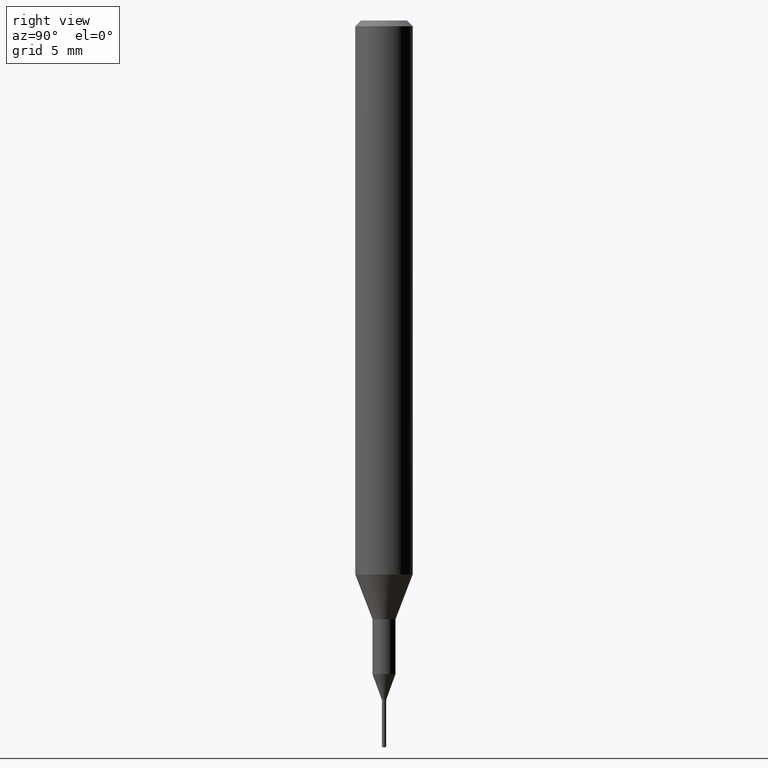
[diagram: clean part render]
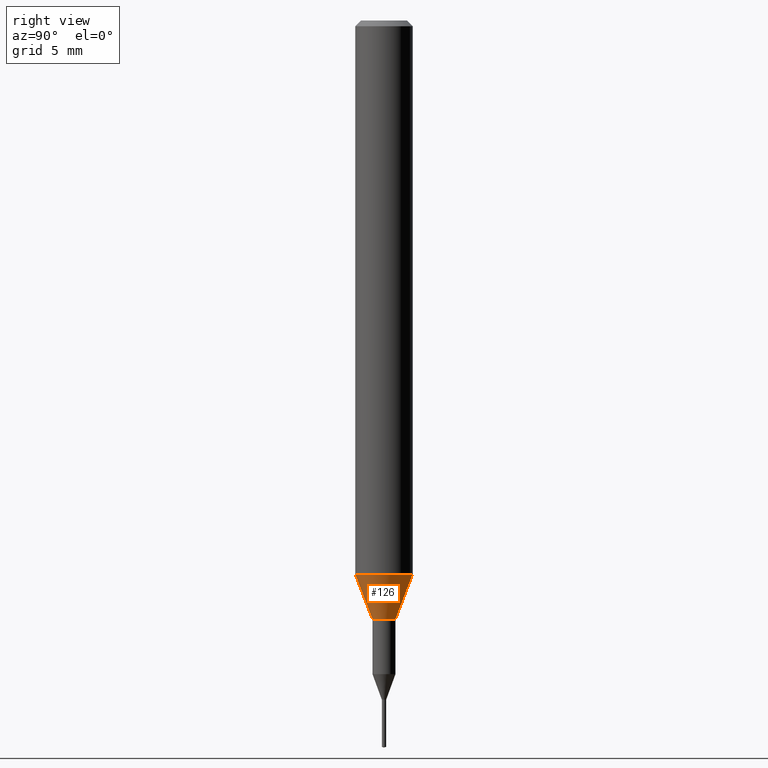
[diagram: same view with one face highlighted and labeled with its STEP entity id]
A machine part, right view. The second image highlights one B-rep face of the part: STEP entity #126.
In plain terms, the highlighted conical surface has half-angle 20.997 deg.
Its self-contained STEP definition (entity closure, byte-faithful):
#126=ADVANCED_FACE('',(#305),#306,.T.);
#128=EDGE_CURVE('',#166,#260,#308,.T.);
#144=EDGE_CURVE('',#188,#260,#325,.T.);
#150=EDGE_CURVE('',#200,#188,#332,.T.);
#166=VERTEX_POINT('',#349);
#188=VERTEX_POINT('',#377);
#200=VERTEX_POINT('',#390);
#260=VERTEX_POINT('',#455);
#264=EDGE_CURVE('',#166,#200,#460,.T.);
#305=FACE_OUTER_BOUND('',#496,.T.);
#306=CONICAL_SURFACE('',#497,1.05,0.366459241971866);
#308=CIRCLE('',#500,1.5);
#325=LINE('',#524,#525);
#332=CIRCLE('',#535,0.6);
#349=CARTESIAN_POINT('',(0.0,1.5,-28.955));
#377=CARTESIAN_POINT('',(7.34763812293426E-017,-0.6,-31.3));
#390=CARTESIAN_POINT('',(0.0,0.6,-31.3));
#455=CARTESIAN_POINT('',(1.83690953073357E-016,-1.5,-28.955));
#460=LINE('',#699,#700);
#496=EDGE_LOOP('',(#730,#731,#732,#733));
#497=AXIS2_PLACEMENT_3D('',#734,#735,#736);
#500=AXIS2_PLACEMENT_3D('',#737,#738,#739);
#524=CARTESIAN_POINT('',(1.2858366715135E-016,-1.05,-30.1275));
#525=VECTOR('',#756,1.0);
#535=AXIS2_PLACEMENT_3D('',#766,#767,#768);
#699=CARTESIAN_POINT('',(-1.2858366715135E-016,1.05,-30.1275));
#700=VECTOR('',#921,1.0);
#730=ORIENTED_EDGE('',*,*,#264,.F.);
#731=ORIENTED_EDGE('',*,*,#128,.T.);
#732=ORIENTED_EDGE('',*,*,#144,.F.);
#733=ORIENTED_EDGE('',*,*,#150,.F.);
#734=CARTESIAN_POINT('',(0.0,0.0,-30.1275));
#735=DIRECTION('',(-0.0,-0.0,1.0));
#736=DIRECTION('',(0.0,1.0,0.0));
#737=CARTESIAN_POINT('',(0.0,0.0,-28.955));
#738=DIRECTION('',(0.0,0.0,-1.0));
#739=DIRECTION('',(0.0,1.0,0.0));
#756=DIRECTION('',(4.38791184365088E-017,-0.358312026550805,0.93360189140182));
#766=CARTESIAN_POINT('',(0.0,0.0,-31.3));
#767=DIRECTION('',(0.0,0.0,-1.0));
#768=DIRECTION('',(0.0,1.0,0.0));
#921=DIRECTION('',(4.38791184365088E-017,-0.358312026550805,-0.93360189140182));